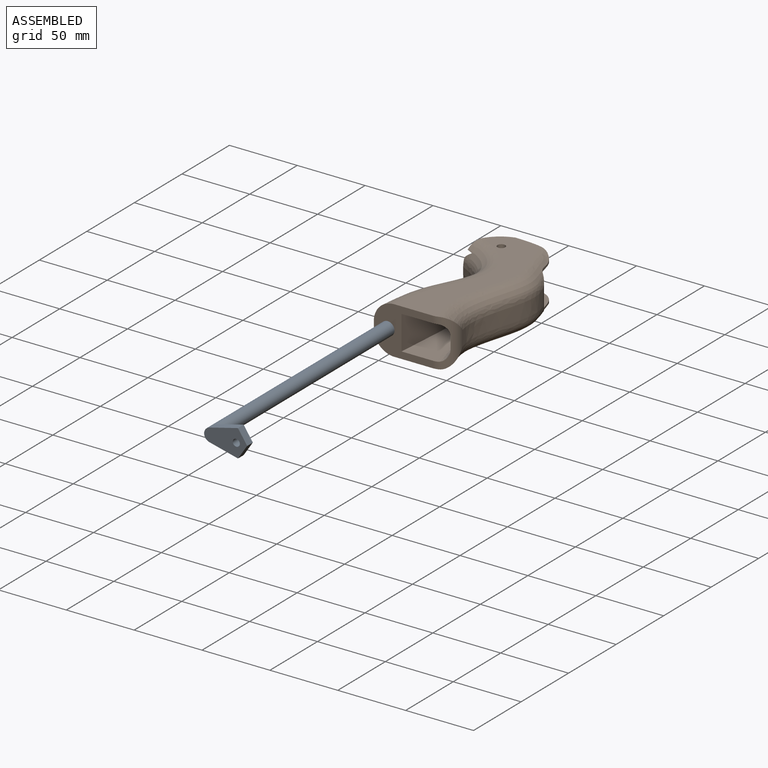
[diagram: assembled view]
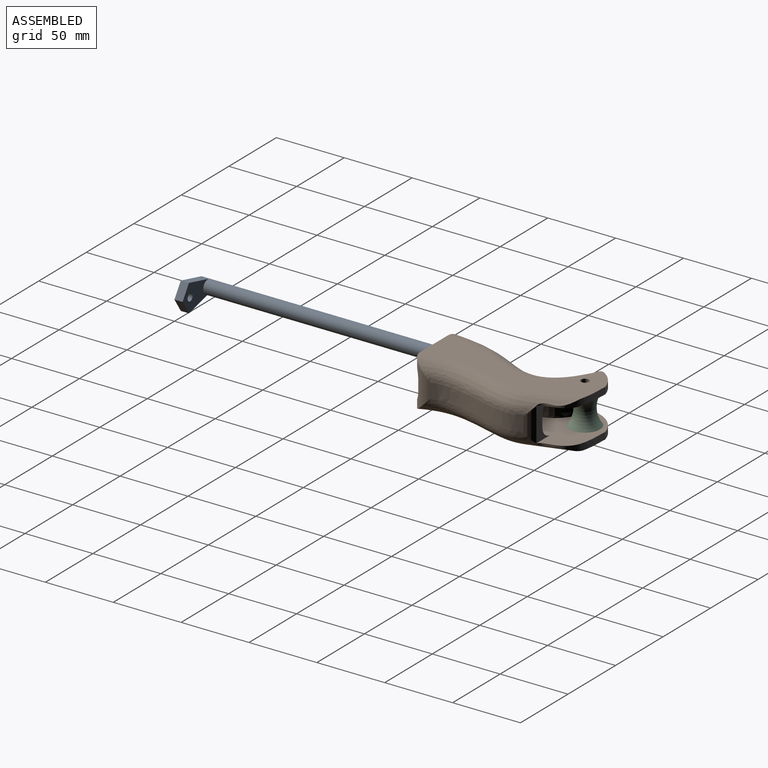
[diagram: assembled view, second angle]
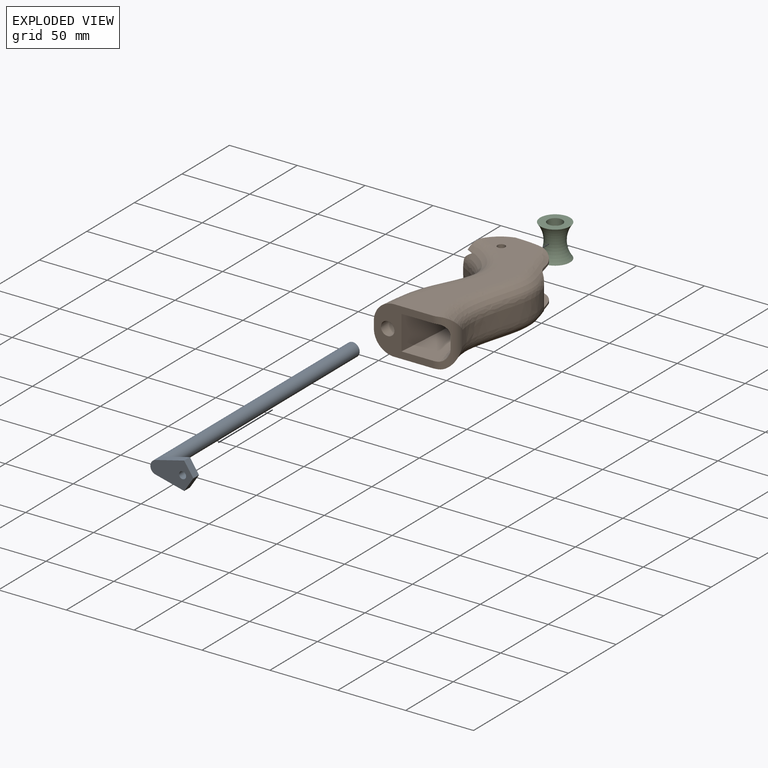
[diagram: exploded view]
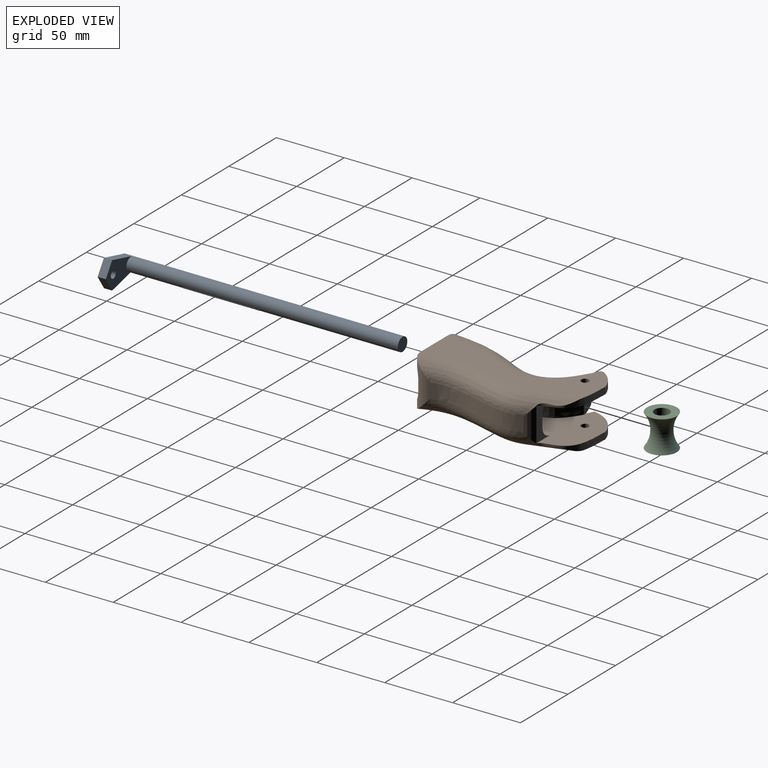
[diagram: exploded view, second angle]
ASSEMBLY  parts=3 mates=2
PART A: 9 faces, bbox 31.7x206x20.3 mm
  f0: cylinder r=5mm len=206mm, axis (0,1,0), area 6362.8mm2, adj f1,f2,f3,f4,f8
  f1: plane 10x10mm, normal (0,1,0), area 78.5mm2, adj f0
  f2: plane 27.88x20.25mm, normal (0,1,0), area 312.4mm2, adj f0,f3,f4,f5,f6,f7
  f3: plane 21.16x6mm, normal (-0.24,0,0.97), area 130.9mm2, adj f0,f2,f6,f8
  f4: plane 21.16x6mm, normal (-0.24,0,-0.97), area 130.9mm2, adj f0,f2,f5,f8
  f5: plane 10.13x6.72mm, normal (0.83,0,-0.55), area 72.9mm2, adj f2,f4,f6,f8
  f6: plane 10.13x6.72mm, normal (0.83,0,0.55), area 72.9mm2, adj f2,f3,f5,f8
  f7: cylinder r=2.61mm len=6mm, axis (0,1,0), area 98.3mm2, adj f2,f8
  f8: plane 31.67x20.25mm, normal (0,-1,0), area 391mm2, adj f0,f3,f4,f5,f6,f7
PART B: 32 faces, bbox 67.8x156.6x35.9 mm
  f0: extruded ~37.49x24.66mm, area 175.7mm2, adj f2,f4,f10,f18,f19
  f1: cylinder r=28.06mm len=21.93mm, axis (0,0,-1), area 128mm2, adj f8,f15,f17,f22
  f2: cylinder r=28.06mm len=21.92mm, axis (0,0,-1), area 128mm2, adj f0,f4,f10,f23
  f3: cylinder r=2.85mm len=5.71mm, axis (0,0,-1), area 89.7mm2, adj f4,f10
  f4: plane 120.17x58.14mm, normal (0,0,1), area 3245.4mm2, adj f0,f2,f3,f6,f12,f13,f20,f23
  f5: extruded ~94x20.56mm, area 536.2mm2, adj f6,f9,f22,f23
  f6: plane 44.1x35.72mm, normal (0,-1,0), area 768.7mm2, adj f4,f5,f10,f12,f15,f17,f20,f22
  f7: extruded ~74.08x11mm, area 831.1mm2, adj f18,f19,f20,f21
  f8: extruded ~37.49x24.66mm, area 175.7mm2, adj f1,f15,f17,f19,f21
  f9: cylinder r=28.06mm len=16.86mm, axis (0,0,-1), area 14.6mm2, adj f5,f22,f23,f29
  f10: plane 120.01x47.4mm, normal (0,0,-1), area 2634.5mm2, adj f0,f2,f3,f6,f18,f20,f23
  f11: extruded ~85.29x10.36mm, area 786.3mm2, adj f14,f20,f25,f26
  f12: plane 70.14x25mm, normal (1,-0.07,0), area 1758.2mm2, adj f4,f6,f13,f15
  f13: extruded ~25.2x25mm, area 814.6mm2, adj f4,f12,f15,f29
  f14: extruded ~9x5.23mm, area 66.9mm2, adj f11,f24,f27,f28
  f15: plane 120.17x58.14mm, normal (0,0,-1), area 3245.4mm2, adj f1,f6,f8,f12,f13,f16,f20,f22
  f16: cylinder r=2.85mm len=5.71mm, axis (0,0,-1), area 89.7mm2, adj f15,f17
  f17: plane 120.01x47.41mm, normal (0,0,1), area 2634.6mm2, adj f1,f6,f8,f16,f20,f21,f22
  f18: bspline ~153.61x32.68mm, area 1783.8mm2, adj f0,f7,f10,f19,f20
  f19: cylinder r=12mm len=25.18mm, axis (0,0,-1), area 143.1mm2, adj f0,f7,f8,f18,f21,f28
  f20: cylinder r=12mm len=35mm, axis (0,0,-1), area 359.2mm2, adj f4,f6,f7,f10,f11,f15,f17,f18
  f21: bspline ~140.93x28.66mm, area 1783.4mm2, adj f7,f8,f17,f19,f20
  f22: bspline ~113.11x38.52mm, area 2679.7mm2, adj f1,f5,f6,f9,f15,f17,f29
  f23: bspline ~113.11x38.52mm, area 2679.8mm2, adj f2,f4,f5,f6,f9,f10,f29
  f24: bspline ~16.19x14.68mm, area 117.8mm2, adj f4,f14,f25,f28
  f25: bspline ~91.79x18.38mm, area 1092.5mm2, adj f4,f11,f20,f24
  f26: bspline ~91.79x18.38mm, area 1092.5mm2, adj f11,f15,f20,f27
  f27: bspline ~16.19x14.68mm, area 117.8mm2, adj f14,f15,f26,f28
  f28: plane 25.85x15.97mm, normal (0,1,0), area 191.3mm2, adj f4,f14,f15,f19,f24,f27
  f29: plane 25.45x8.3mm, normal (0,1,0), area 176.3mm2, adj f4,f9,f13,f15,f22,f23
  f30: cylinder r=5mm len=20mm, axis (0,-1,0), area 628.3mm2, adj f6,f31
  f31: plane 10x10mm, normal (0,-1,0), area 78.5mm2, adj f30
PART C: 8 faces, bbox 27.7x27.7x28.4 mm
  f0: cylinder r=2.5mm len=14mm, axis (0,0,1), area 219.9mm2, adj f5,f7
  f1: torus R=27mm, axis (0,0,1), area 1350.8mm2, adj f2,f3
  f2: plane 22x22mm, normal (0,0,-1), area 285.1mm2, adj f1,f6
  f3: plane 22x22mm, normal (0,0,1), area 285.1mm2, adj f1,f4
  f4: cylinder r=5.5mm len=11mm, axis (0,0,1), area 172.8mm2, adj f3,f5
  f5: plane 11x11mm, normal (0,0,1), area 75.4mm2, adj f0,f4
  f6: cylinder r=5.5mm len=11mm, axis (0,0,-1), area 172.8mm2, adj f2,f7
  f7: plane 11x11mm, normal (0,0,-1), area 75.4mm2, adj f0,f6
PLACE A t=(-50.73,-40.81,24.41)mm
PLACE B t=(-20.94,-0.81,6.91)mm
PLACE C t=(-40.52,44.19,24.41)mm
MATE fastened A.f0 <-> B.f30  axis (0,1,0) through (-50.73,-40.81,24.41)mm
MATE fastened C.f6 <-> B.f3  axis (0,0,-1) through (-40.52,44.19,12.41)mm
